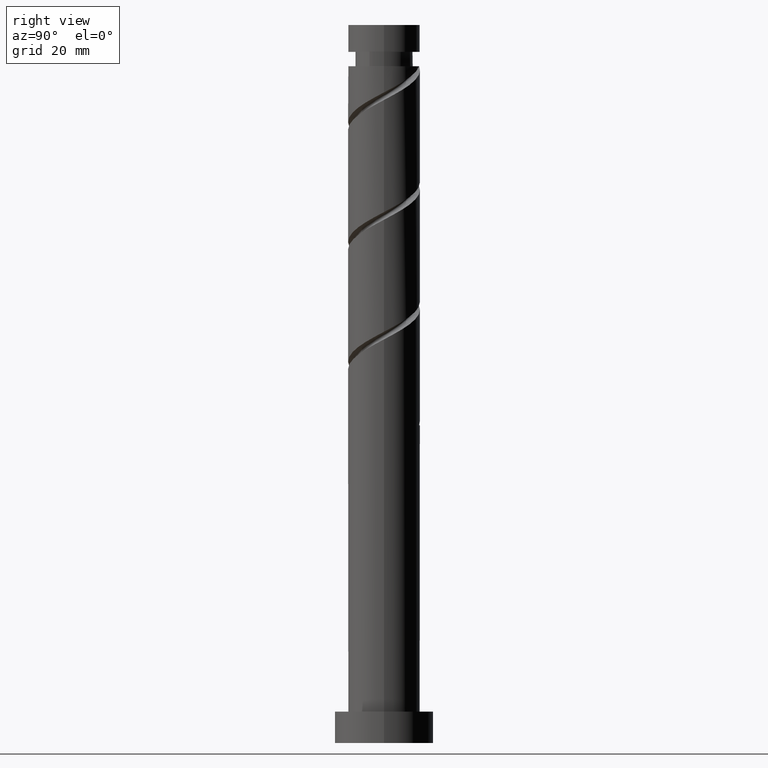
[diagram: clean part render]
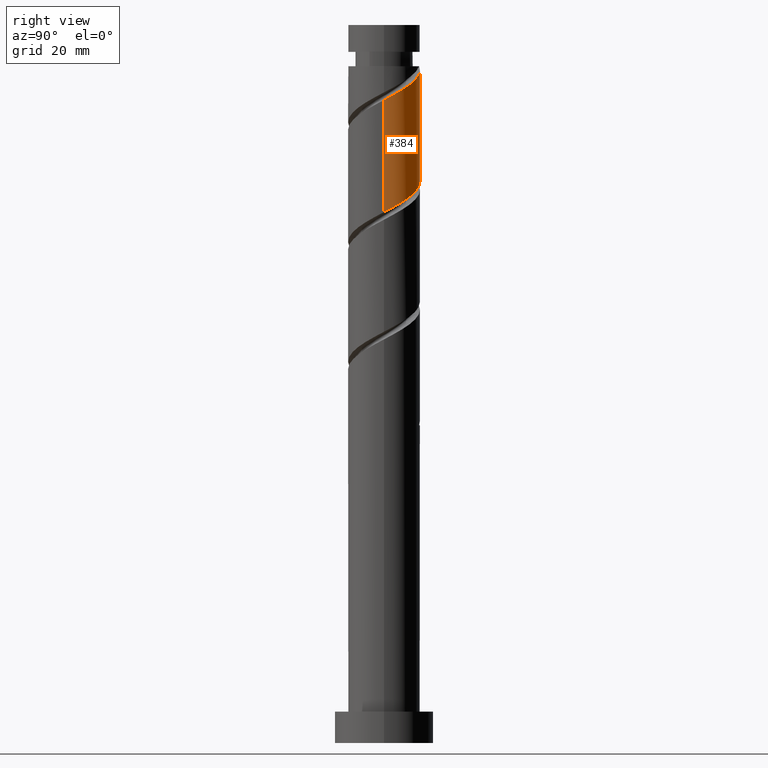
[diagram: same view with one face highlighted and labeled with its STEP entity id]
A machine part, right view. The second image highlights one B-rep face of the part: STEP entity #384.
In plain terms, the highlighted cylindrical surface (edge-blend (fillet) strip) has radius 8 mm, axis along (-0, -0, -1).
Its self-contained STEP definition (entity closure, byte-faithful):
#21 = CARTESIAN_POINT ( 'NONE',  ( 6.402413624641615897, 4.932759921154291405, 121.1022406667495375 ) ) ;
#27 = CARTESIAN_POINT ( 'NONE',  ( -4.882551537609416847, 6.337246285460895301, 127.7689073334161947 ) ) ;
#45 = DIRECTION ( 'NONE',  ( -0.000000000000000000, -0.000000000000000000, -1.000000000000000000 ) ) ;
#63 = VERTEX_POINT ( 'NONE', #344 ) ;
#71 = CARTESIAN_POINT ( 'NONE',  ( -1.591979899370591367, 7.840000000000012292, 150.7992103637192258 ) ) ;
#121 = CARTESIAN_POINT ( 'NONE',  ( -7.999999999999998224, -4.367391645420995201E-15, 131.6486648430201001 ) ) ;
#127 = CARTESIAN_POINT ( 'NONE',  ( 6.470182492983660438, 4.704969554363550799, 145.9507255152344101 ) ) ;
#145 = CARTESIAN_POINT ( 'NONE',  ( 2.719201724291185229, 7.611107845994204091, 123.5264830909919738 ) ) ;
#174 = LINE ( 'NONE', #440, #1412 ) ;
#180 = EDGE_CURVE ( 'NONE', #1619, #941, #295, .T. ) ;
#192 = DIRECTION ( 'NONE',  ( -0.000000000000000000, -0.000000000000000000, -1.000000000000000000 ) ) ;
#212 = CARTESIAN_POINT ( 'NONE',  ( 0.000000000000000000, 0.000000000000000000, 150.7992103637192258 ) ) ;
#220 = CARTESIAN_POINT ( 'NONE',  ( -7.999999999999994671, 0.000000000000000000, 150.7992103637192258 ) ) ;
#238 = CARTESIAN_POINT ( 'NONE',  ( 7.986762466259771820, 0.4600275073779050428, 143.5264830909919169 ) ) ;
#259 = CARTESIAN_POINT ( 'NONE',  ( 5.577882723393623010, 5.734738383227862002, 121.7083012728101465 ) ) ;
#263 = ORIENTED_EDGE ( 'NONE', *, *, #1359, .F. ) ;
#295 =( BOUNDED_CURVE ( )  B_SPLINE_CURVE ( 2, ( #121, #1566, #1559, #641, #657, #550, #779, #421, #27, #1659, #1284, #1293, #925, #1166, #519, #145, #894, #1407, #259, #21, #1551, #649, #1151, #525, #1029 ),
 .UNSPECIFIED., .F., .T. ) 
 B_SPLINE_CURVE_WITH_KNOTS ( ( 3, 2, 2, 2, 2, 2, 2, 2, 2, 2, 2, 2, 3 ),
 ( 0.4295252162417513286, 0.4318181818181818232, 0.4431818181818181768, 0.4545454545454545303, 0.4659090909090908839, 0.4772727272727272929, 0.4886363636363636465, 0.5000000000000000000, 0.5113636363636363535, 0.5227272727272727071, 0.5340909090909090606, 0.5454545454545454142, 0.5545252162417513286 ),
 .UNSPECIFIED. ) 
 CURVE ( )  GEOMETRIC_REPRESENTATION_ITEM ( )  RATIONAL_B_SPLINE_CURVE ( ( 0.9061101570135514649, 0.9072237824201335732, 0.9090909090909110590, 0.8998376744372134084, 0.9090909090909110590, 0.8998376744372134084, 0.9090909090909110590, 0.8998376744372134084, 0.9090909090909110590, 0.8998376744372134084, 0.9090909090909110590, 0.8998376744372134084, 0.9090909090909110590, 0.8998376744372134084, 0.9090909090909110590, 0.8998376744372134084, 0.9090909090909110590, 0.8998376744372134084, 0.9090909090909110590, 0.8998376744372134084, 0.9090909090909110590, 0.8998376744372134084, 0.9090909090909110590, 0.9017048011079908942, 0.9061101570135515759 ) ) 
 REPRESENTATION_ITEM ( '' )  );
#297 = EDGE_CURVE ( 'NONE', #63, #941, #1584, .T. ) ;
#344 = CARTESIAN_POINT ( 'NONE',  ( 8.000000000000012434, 4.008427948537045530E-15, 143.2830892177516660 ) ) ;
#352 = CYLINDRICAL_SURFACE ( 'NONE', #669, 8.000000000000000000 ) ;
#384 = ADVANCED_FACE ( 'NONE', ( #1360 ), #352, .T. ) ;
#421 = CARTESIAN_POINT ( 'NONE',  ( -5.793709997158964065, 5.635241355040879974, 128.3749679394768464 ) ) ;
#440 = CARTESIAN_POINT ( 'NONE',  ( -8.000000000000000000, 0.000000000000000000, 160.0000000000000000 ) ) ;
#470 =( BOUNDED_CURVE ( )  B_SPLINE_CURVE ( 2, ( #732, #1396, #238, #749, #503, #1009, #127, #982, #1258, #629, #1521, #876, #1639, #478, #489 ),
 .UNSPECIFIED., .F., .T. ) 
 B_SPLINE_CURVE_WITH_KNOTS ( ( 3, 2, 2, 2, 2, 2, 2, 3 ),
 ( 0.6795252162417513286, 0.6818181818181818787, 0.6931818181818180102, 0.7045454545454544748, 0.7159090909090906063, 0.7272727272727270709, 0.7386363636363633134, 0.7499999999999996669 ),
 .UNSPECIFIED. ) 
 CURVE ( )  GEOMETRIC_REPRESENTATION_ITEM ( )  RATIONAL_B_SPLINE_CURVE ( ( 0.9061101570135589034, 0.9072237824201410117, 0.9090909090909186085, 0.8998376744372208469, 0.9090909090909186085, 0.8998376744372208469, 0.9090909090909186085, 0.8998376744372208469, 0.9090909090909186085, 0.8998376744372208469, 0.9090909090909186085, 0.8998376744372208469, 0.9090909090909186085, 0.8998376744372210689, 0.9090909090909183865 ) ) 
 REPRESENTATION_ITEM ( '' )  );
#478 = CARTESIAN_POINT ( 'NONE',  ( -0.4647580744499659189, 8.068892154005803619, 150.1931497576586310 ) ) ;
#479 = ORIENTED_EDGE ( 'NONE', *, *, #809, .T. ) ;
#489 = CARTESIAN_POINT ( 'NONE',  ( -1.591979899370591367, 7.840000000000012292, 150.7992103637192258 ) ) ;
#494 = CARTESIAN_POINT ( 'NONE',  ( -7.999999999999998224, -4.367391645420995989E-15, 131.6486648430201001 ) ) ;
#503 = CARTESIAN_POINT ( 'NONE',  ( 7.533637742433276330, 2.691524171503018259, 144.7386043031131635 ) ) ;
#519 = CARTESIAN_POINT ( 'NONE',  ( 1.591979899370594254, 7.839999999999999858, 124.1325436970525828 ) ) ;
#525 = CARTESIAN_POINT ( 'NONE',  ( 8.000000000000001776, 0.9162314190809766057, 118.8012914626581136 ) ) ;
#550 = CARTESIAN_POINT ( 'NONE',  ( -7.146654988808328390, 3.774697753686214963, 129.5870891515980645 ) ) ;
#577 = DIRECTION ( 'NONE',  ( -1.000000000000000000, 0.000000000000000000, 0.000000000000000000 ) ) ;
#621 = CARTESIAN_POINT ( 'NONE',  ( 8.000000000000000000, -8.645042366621013042E-15, 118.3153315096867715 ) ) ;
#629 = CARTESIAN_POINT ( 'NONE',  ( 3.971393078059876292, 7.039251215880921286, 147.7689073334161947 ) ) ;
#641 = CARTESIAN_POINT ( 'NONE',  ( -7.920620496058204729, 1.608350589319820001, 130.7992103637192542 ) ) ;
#649 = CARTESIAN_POINT ( 'NONE',  ( 7.532789951889088620, 2.929180124448051536, 119.8901194546283335 ) ) ;
#657 = CARTESIAN_POINT ( 'NONE',  ( -7.533637742433263895, 2.691524171503017815, 130.1931497576586025 ) ) ;
#669 = AXIS2_PLACEMENT_3D ( 'NONE', #1011, #1232, #1224 ) ;
#732 = CARTESIAN_POINT ( 'NONE',  ( 8.000000000000012434, 4.008427948537045530E-15, 143.2830892177516660 ) ) ;
#749 = CARTESIAN_POINT ( 'NONE',  ( 7.920620496058218052, 1.608350589319820445, 144.1325436970525971 ) ) ;
#779 = CARTESIAN_POINT ( 'NONE',  ( -6.470182492983646227, 4.704969554363548134, 128.9810285455374128 ) ) ;
#809 = EDGE_CURVE ( 'NONE', #996, #1579, #1629, .T. ) ;
#821 = ORIENTED_EDGE ( 'NONE', *, *, #180, .F. ) ;
#836 = EDGE_LOOP ( 'NONE', ( #1217, #888, #821, #263, #479 ) ) ;
#876 = CARTESIAN_POINT ( 'NONE',  ( 1.827337510560428147, 7.872982807249216286, 148.9810285455373844 ) ) ;
#888 = ORIENTED_EDGE ( 'NONE', *, *, #297, .T. ) ;
#894 = CARTESIAN_POINT ( 'NONE',  ( 3.736276773218406788, 7.073912345647820565, 122.9204224849313647 ) ) ;
#925 = CARTESIAN_POINT ( 'NONE',  ( -0.6812897180552106580, 7.970937480627498850, 125.3446649091737584 ) ) ;
#941 = VERTEX_POINT ( 'NONE', #621 ) ;
#982 = CARTESIAN_POINT ( 'NONE',  ( 5.793709997158980940, 5.635241355040885303, 146.5567861212950049 ) ) ;
#996 = VERTEX_POINT ( 'NONE', #220 ) ;
#1009 = CARTESIAN_POINT ( 'NONE',  ( 7.146654988808342601, 3.774697753686217183, 145.3446649091737868 ) ) ;
#1011 = CARTESIAN_POINT ( 'NONE',  ( 0.000000000000000000, 0.000000000000000000, 160.0000000000000000 ) ) ;
#1029 = CARTESIAN_POINT ( 'NONE',  ( 8.000000000000000000, -8.645042366621013042E-15, 118.3153315096867715 ) ) ;
#1064 = EDGE_CURVE ( 'NONE', #63, #1579, #470, .T. ) ;
#1068 = CARTESIAN_POINT ( 'NONE',  ( 8.000000000000000000, 9.797174393178825657E-16, 160.0000000000000000 ) ) ;
#1151 = CARTESIAN_POINT ( 'NONE',  ( 7.792847194175199554, 1.808737849506028450, 119.2840588485676960 ) ) ;
#1166 = CARTESIAN_POINT ( 'NONE',  ( 0.4647580744500015570, 8.068892154005789408, 124.7386043031131635 ) ) ;
#1190 = DIRECTION ( 'NONE',  ( -0.000000000000000000, -0.000000000000000000, -1.000000000000000000 ) ) ;
#1217 = ORIENTED_EDGE ( 'NONE', *, *, #1064, .F. ) ;
#1224 = DIRECTION ( 'NONE',  ( -1.000000000000000000, 0.000000000000000000, 0.000000000000000000 ) ) ;
#1232 = DIRECTION ( 'NONE',  ( -0.000000000000000000, -0.000000000000000000, -1.000000000000000000 ) ) ;
#1258 = CARTESIAN_POINT ( 'NONE',  ( 4.882551537609424841, 6.337246285460905071, 147.1628467273556282 ) ) ;
#1284 = CARTESIAN_POINT ( 'NONE',  ( -2.899365294310144670, 7.456117011565058128, 126.5567861212949765 ) ) ;
#1293 = CARTESIAN_POINT ( 'NONE',  ( -1.827337510560423040, 7.872982807249202075, 125.9507255152343959 ) ) ;
#1353 = VECTOR ( 'NONE', #1190, 1000.000000000000000 ) ;
#1359 = EDGE_CURVE ( 'NONE', #996, #1619, #174, .T. ) ;
#1360 = FACE_OUTER_BOUND ( 'NONE', #836, .T. ) ;
#1386 = AXIS2_PLACEMENT_3D ( 'NONE', #212, #192, #577 ) ;
#1396 = CARTESIAN_POINT ( 'NONE',  ( 8.000000000000014211, 0.2302042121905717165, 143.4051872224698627 ) ) ;
#1407 = CARTESIAN_POINT ( 'NONE',  ( 4.753351822145630123, 6.536716845301432599, 122.3143618788707698 ) ) ;
#1412 = VECTOR ( 'NONE', #45, 1000.000000000000000 ) ;
#1521 = CARTESIAN_POINT ( 'NONE',  ( 2.899365294310150443, 7.456117011565067898, 148.3749679394767895 ) ) ;
#1551 = CARTESIAN_POINT ( 'NONE',  ( 6.967601788265351814, 3.930970022801174579, 120.4961800606889284 ) ) ;
#1559 = CARTESIAN_POINT ( 'NONE',  ( -7.986762466259757609, 0.4600275073779075963, 131.4052709697798207 ) ) ;
#1566 = CARTESIAN_POINT ( 'NONE',  ( -8.000000000000000000, 0.2302042121905776284, 131.5265668383018749 ) ) ;
#1579 = VERTEX_POINT ( 'NONE', #71 ) ;
#1584 = LINE ( 'NONE', #1068, #1353 ) ;
#1619 = VERTEX_POINT ( 'NONE', #494 ) ;
#1629 = CIRCLE ( 'NONE', #1386, 7.999999999999994671 ) ;
#1639 = CARTESIAN_POINT ( 'NONE',  ( 0.6812897180552140997, 7.970937480627512173, 149.5870891515980361 ) ) ;
#1659 = CARTESIAN_POINT ( 'NONE',  ( -3.971393078059868742, 7.039251215880909740, 127.1628467273556140 ) ) ;